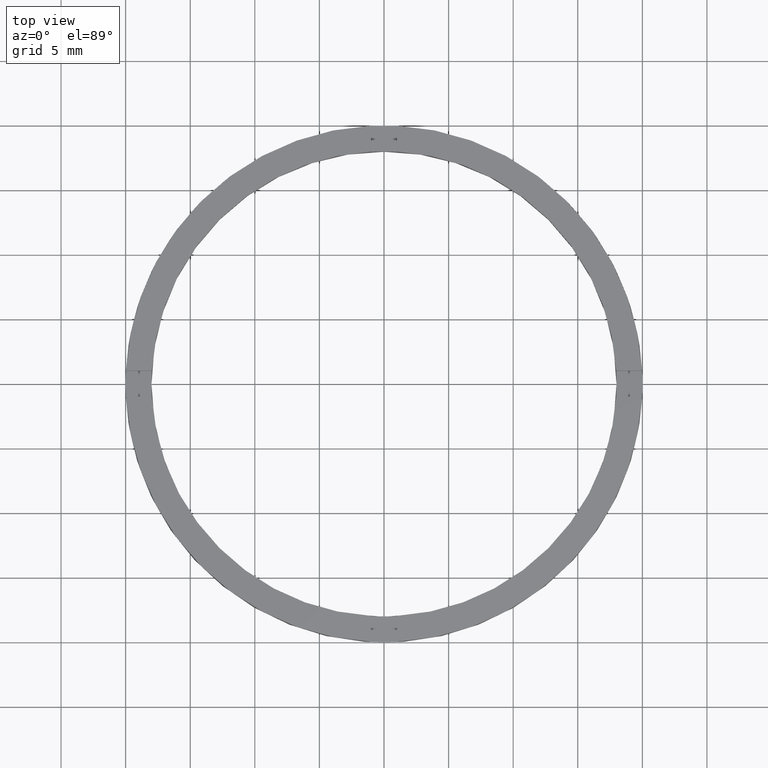
[diagram: clean part render]
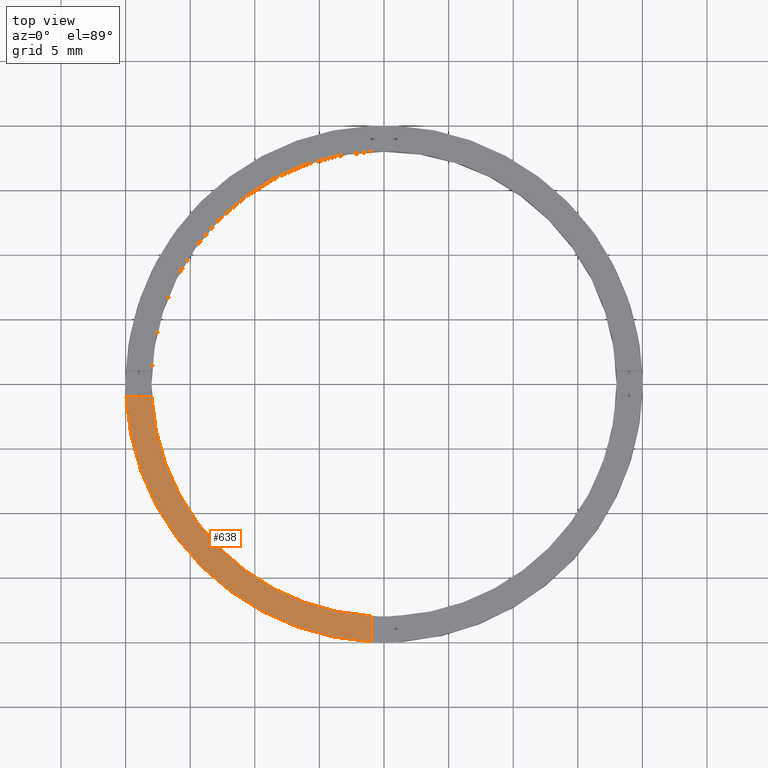
[diagram: same view with one face highlighted and labeled with its STEP entity id]
A machine part, top view. The second image highlights one B-rep face of the part: STEP entity #638.
In plain terms, the highlighted planar face has unit normal (0, 0, 1).
Its self-contained STEP definition (entity closure, byte-faithful):
#7 = DIRECTION ( 'NONE',  ( 1.000000000000000000, 1.734723475976807341E-16, -0.000000000000000000 ) ) ;
#24 = EDGE_LOOP ( 'NONE', ( #387, #605, #125, #210 ) ) ;
#32 = CARTESIAN_POINT ( 'NONE',  ( -1.000000000000160760, -17.97220075561141783, 2.500000000000000000 ) ) ;
#51 = DIRECTION ( 'NONE',  ( 1.000000000000000000, 0.000000000000000000, 0.000000000000000000 ) ) ;
#58 = DIRECTION ( 'NONE',  ( 1.000000000000000000, 0.000000000000000000, -0.000000000000000000 ) ) ;
#67 = AXIS2_PLACEMENT_3D ( 'NONE', #761, #433, #58 ) ;
#114 = LINE ( 'NONE', #118, #383 ) ;
#118 = CARTESIAN_POINT ( 'NONE',  ( -10.00000000000018652, -1.000000000000023981, 2.500000000000000000 ) ) ;
#125 = ORIENTED_EDGE ( 'NONE', *, *, #330, .F. ) ;
#156 = CARTESIAN_POINT ( 'NONE',  ( 0.000000000000000000, 0.000000000000000000, 2.500000000000000000 ) ) ;
#210 = ORIENTED_EDGE ( 'NONE', *, *, #400, .T. ) ;
#214 = VERTEX_POINT ( 'NONE', #353 ) ;
#228 = CARTESIAN_POINT ( 'NONE',  ( -1.000000000000160538, -19.97498435543817052, 2.500000000000000000 ) ) ;
#287 = LINE ( 'NONE', #309, #545 ) ;
#288 = AXIS2_PLACEMENT_3D ( 'NONE', #398, #478, #51 ) ;
#291 = VERTEX_POINT ( 'NONE', #228 ) ;
#299 = EDGE_CURVE ( 'NONE', #214, #488, #375, .T. ) ;
#309 = CARTESIAN_POINT ( 'NONE',  ( -1.000000000000161871, -10.00000000000018119, 2.500000000000000000 ) ) ;
#330 = EDGE_CURVE ( 'NONE', #491, #214, #114, .T. ) ;
#353 = CARTESIAN_POINT ( 'NONE',  ( -17.97220075561142849, -1.000000000000025313, 2.500000000000000000 ) ) ;
#355 = DIRECTION ( 'NONE',  ( 1.301042606982605321E-16, -1.000000000000000000, 0.000000000000000000 ) ) ;
#375 = CIRCLE ( 'NONE', #464, 18.00000000000000000 ) ;
#383 = VECTOR ( 'NONE', #7, 1000.000000000000000 ) ;
#387 = ORIENTED_EDGE ( 'NONE', *, *, #779, .F. ) ;
#398 = CARTESIAN_POINT ( 'NONE',  ( 0.000000000000000000, 0.000000000000000000, 2.500000000000000000 ) ) ;
#400 = EDGE_CURVE ( 'NONE', #491, #291, #410, .T. ) ;
#410 = CIRCLE ( 'NONE', #288, 20.00000000000000000 ) ;
#423 = FACE_OUTER_BOUND ( 'NONE', #24, .T. ) ;
#433 = DIRECTION ( 'NONE',  ( 0.000000000000000000, 0.000000000000000000, 1.000000000000000000 ) ) ;
#464 = AXIS2_PLACEMENT_3D ( 'NONE', #156, #542, #652 ) ;
#478 = DIRECTION ( 'NONE',  ( 0.000000000000000000, 0.000000000000000000, 1.000000000000000000 ) ) ;
#488 = VERTEX_POINT ( 'NONE', #32 ) ;
#491 = VERTEX_POINT ( 'NONE', #699 ) ;
#542 = DIRECTION ( 'NONE',  ( 0.000000000000000000, 0.000000000000000000, 1.000000000000000000 ) ) ;
#545 = VECTOR ( 'NONE', #355, 1000.000000000000000 ) ;
#605 = ORIENTED_EDGE ( 'NONE', *, *, #299, .F. ) ;
#629 = PLANE ( 'NONE',  #67 ) ;
#638 = ADVANCED_FACE ( 'NONE', ( #423 ), #629, .T. ) ;
#652 = DIRECTION ( 'NONE',  ( 1.000000000000000000, 0.000000000000000000, 0.000000000000000000 ) ) ;
#699 = CARTESIAN_POINT ( 'NONE',  ( -19.97498435543818118, -1.000000000000025757, 2.500000000000000000 ) ) ;
#761 = CARTESIAN_POINT ( 'NONE',  ( 0.000000000000000000, 0.000000000000000000, 2.500000000000000000 ) ) ;
#779 = EDGE_CURVE ( 'NONE', #488, #291, #287, .T. ) ;